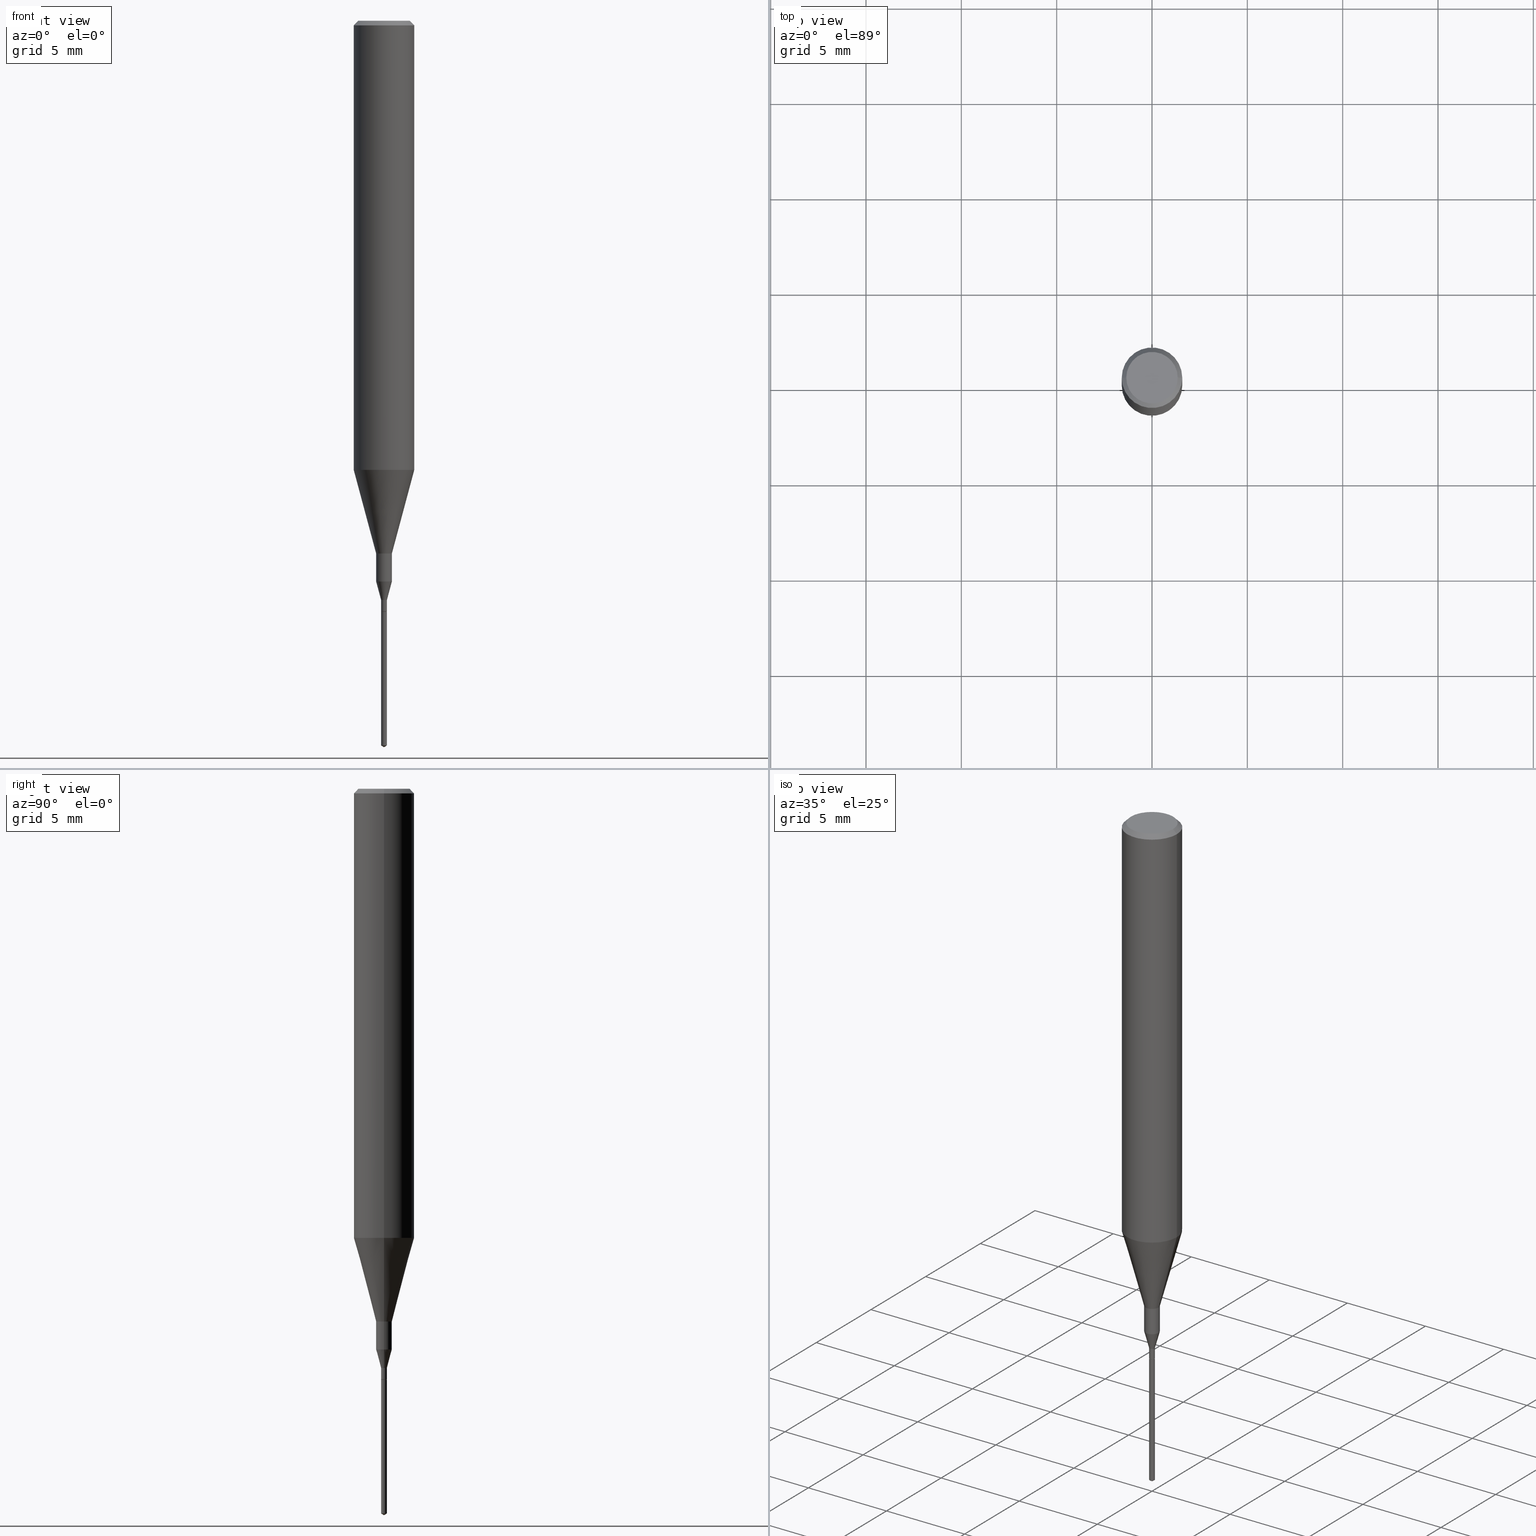
[diagram: canonical four-view strip — front | top / right | iso, engineering-drawing reading convention]
A machine part, canonical four-view strip (front | top / right | iso — engineering-drawing reading convention). The complete STEP part file that produces these views, byte-faithful:
ISO-10303-21;
HEADER;
FILE_DESCRIPTION (( 'STEP AP203' ),
    '1' );
FILE_NAME ('07101.STEP',
    '2024-04-19T13:29:59',
    ( '' ),
    ( '' ),
    'SwSTEP 2.0',
    'SolidWorks 2023',
    '' );
FILE_SCHEMA (( 'CONFIG_CONTROL_DESIGN' ));
ENDSEC;

DATA;
#1 = EDGE_LOOP ( 'NONE', ( #432, #567 ) ) ;
#2 = APPROVAL_ROLE ( '' ) ;
#3 = EDGE_LOOP ( 'NONE', ( #159, #358, #18, #291 ) ) ;
#4 = DIRECTION ( 'NONE',  ( -6.982962677686265133E-15, -1.000000000000000000, 3.468864327941785119E-15 ) ) ;
#5 = ADVANCED_FACE ( 'NONE', ( #354 ), #546, .T. ) ;
#6 = CARTESIAN_POINT ( 'NONE',  ( 2.983471943545866670E-29, -4.259607233388637524E-15, -1.220000000000000195 ) ) ;
#7 = CARTESIAN_POINT ( 'NONE',  ( 2.831232900409094204E-29, -4.042250227316429819E-15, -1.157746479222419245 ) ) ;
#8 = CARTESIAN_POINT ( 'NONE',  ( 3.660032449137451558E-29, -5.223710174552565788E-15, -1.496394836285834584 ) ) ;
#9 = AXIS2_PLACEMENT_3D ( 'NONE', #55, #236, #367 ) ;
#10 = FACE_OUTER_BOUND ( 'NONE', #399, .T. ) ;
#11 = CARTESIAN_POINT ( 'NONE',  ( -0.005500000000000000548, -4.217878155747721172E-15, -1.220000000000000195 ) ) ;
#12 = CARTESIAN_POINT ( 'NONE',  ( -0.005999999999999988849, 4.263256414560593192E-17, -2.951361054152938246E-31 ) ) ;
#13 = APPROVAL_STATUS ( 'not_yet_approved' ) ;
#14 = LINE ( 'NONE', #12, #323 ) ;
#15 = PERSON_AND_ORGANIZATION ( #486, #386 ) ;
#16 = DIRECTION ( 'NONE',  ( -0.2588190451025219607, 5.211531920934553408E-15, 0.9659258262890678681 ) ) ;
#17 = EDGE_CURVE ( 'NONE', #538, #357, #307, .T. ) ;
#18 = ORIENTED_EDGE ( 'NONE', *, *, #361, .T. ) ;
#19 = LINE ( 'NONE', #145, #337 ) ;
#20 = CARTESIAN_POINT ( 'NONE',  ( 0.005999999999999988849, -4.189777606611752779E-17, 2.925706065477556414E-31 ) ) ;
#21 = VERTEX_POINT ( 'NONE', #412 ) ;
#22 = DIRECTION ( 'NONE',  ( -2.445468806185136877E-29, 3.491481338843145188E-15, 1.000000000000000000 ) ) ;
#23 = ADVANCED_FACE ( 'NONE', ( #369 ), #396, .T. ) ;
#24 = VECTOR ( 'NONE', #565, 39.37007874015748854 ) ;
#25 = DIRECTION ( 'NONE',  ( -6.982962677686265922E-15, -1.000000000000000000, 0.000000000000000000 ) ) ;
#26 = DIRECTION ( 'NONE',  ( 1.000000000000000000, -6.982962677686270655E-15, 0.000000000000000000 ) ) ;
#27 = CARTESIAN_POINT ( 'NONE',  ( -0.01625000000000000056, -3.926787032755413633E-15, -1.157746479222419245 ) ) ;
#28 = ORIENTED_EDGE ( 'NONE', *, *, #401, .T. ) ;
#29 = VECTOR ( 'NONE', #228, 39.37007874015748143 ) ;
#30 = APPROVAL_DATE_TIME ( #169, #190 ) ;
#31 = VERTEX_POINT ( 'NONE', #11 ) ;
#32 = ORIENTED_EDGE ( 'NONE', *, *, #149, .T. ) ;
#33 = EDGE_CURVE ( 'NONE', #262, #488, #92, .T. ) ;
#34 = AXIS2_PLACEMENT_3D ( 'NONE', #558, #203, #53 ) ;
#35 = ORIENTED_EDGE ( 'NONE', *, *, #500, .T. ) ;
#36 = SHAPE_DEFINITION_REPRESENTATION ( #475, #454 ) ;
#37 = PRODUCT_DEFINITION ( 'UNKNOWN', '', #498, #166 ) ;
#38 = VERTEX_POINT ( 'NONE', #178 ) ;
#39 = CIRCLE ( 'NONE', #418, 0.06250000000000011102 ) ;
#40 = ORIENTED_EDGE ( 'NONE', *, *, #509, .F. ) ;
#41 = EDGE_CURVE ( 'NONE', #421, #544, #238, .T. ) ;
#42 = AXIS2_PLACEMENT_3D ( 'NONE', #6, #181, #48 ) ;
#43 = DIRECTION ( 'NONE',  ( -2.445468806185136597E-29, 3.491481338843145583E-15, 1.000000000000000000 ) ) ;
#44 = AXIS2_PLACEMENT_3D ( 'NONE', #366, #453, #551 ) ;
#45 = FACE_OUTER_BOUND ( 'NONE', #176, .T. ) ;
#46 = DIRECTION ( 'NONE',  ( -2.445468806185136597E-29, 3.491481338843145583E-15, 1.000000000000000000 ) ) ;
#47 = AXIS2_PLACEMENT_3D ( 'NONE', #233, #231, #324 ) ;
#48 = DIRECTION ( 'NONE',  ( 1.000000000000000000, -6.982962677686244622E-15, 0.000000000000000000 ) ) ;
#49 = VECTOR ( 'NONE', #476, 39.37007874015748143 ) ;
#50 = DIRECTION ( 'NONE',  ( -2.445468806185136597E-29, 3.491481338843145583E-15, 1.000000000000000000 ) ) ;
#51 = CARTESIAN_POINT ( 'NONE',  ( -0.06250000000000011102, -2.793884921928740709E-15, -0.9273926501499395458 ) ) ;
#52 = CARTESIAN_POINT ( 'NONE',  ( 0.000000000000000000, 0.000000000000000000, 0.000000000000000000 ) ) ;
#53 = DIRECTION ( 'NONE',  ( 1.000000000000000000, -6.982962677686270655E-15, 0.000000000000000000 ) ) ;
#54 = DIRECTION ( 'NONE',  ( -1.000000000000000000, 6.982962677686266711E-15, 0.000000000000000000 ) ) ;
#55 = CARTESIAN_POINT ( 'NONE',  ( 2.690015686803650369E-29, -3.840629472727460101E-15, -1.100000000000000089 ) ) ;
#56 = CALENDAR_DATE ( 2024, 19, 4 ) ;
#57 = DIRECTION ( 'NONE',  ( 2.447804433263427042E-29, -3.488136587931395429E-15, -1.000000000000000000 ) ) ;
#58 = DIRECTION ( 'NONE',  ( 1.000000000000000000, -6.982962677686244622E-15, 0.000000000000000000 ) ) ;
#59 = CARTESIAN_POINT ( 'NONE',  ( 0.05312499999999999861, -4.129888592719939842E-16, -5.787680772767651417E-18 ) ) ;
#60 = ADVANCED_FACE ( 'NONE', ( #45 ), #559, .T. ) ;
#61 = CALENDAR_DATE ( 2024, 19, 4 ) ;
#62 = DIRECTION ( 'NONE',  ( -6.982962677686265922E-15, -1.000000000000000000, 0.000000000000000000 ) ) ;
#63 = DIRECTION ( 'NONE',  ( -2.438088387897960049E-29, 3.491481338843145188E-15, 1.000000000000000000 ) ) ;
#64 = CIRCLE ( 'NONE', #212, 0.005500000000000000548 ) ;
#65 = ORIENTED_EDGE ( 'NONE', *, *, #436, .T. ) ;
#66 = FACE_OUTER_BOUND ( 'NONE', #1, .T. ) ;
#67 = CARTESIAN_POINT ( 'NONE',  ( -0.005500000000000000548, -4.220527382921832374E-15, -1.220000000000000195 ) ) ;
#68 = EDGE_CURVE ( 'NONE', #589, #488, #400, .T. ) ;
#69 = DIRECTION ( 'NONE',  ( -2.445468806185136597E-29, 3.491481338843145583E-15, 1.000000000000000000 ) ) ;
#70 = CYLINDRICAL_SURFACE ( 'NONE', #115, 0.005999999999999988849 ) ;
#71 = ORIENTED_EDGE ( 'NONE', *, *, #244, .T. ) ;
#72 = DIRECTION ( 'NONE',  ( -2.447804433263427602E-29, 3.488136587931395429E-15, 1.000000000000000000 ) ) ;
#73 = EDGE_CURVE ( 'NONE', #192, #222, #304, .T. ) ;
#74 = AXIS2_PLACEMENT_3D ( 'NONE', #342, #111, #520 ) ;
#75 = ORIENTED_EDGE ( 'NONE', *, *, #214, .T. ) ;
#76 = EDGE_LOOP ( 'NONE', ( #360, #75, #439, #128 ) ) ;
#77 = AXIS2_PLACEMENT_3D ( 'NONE', #191, #43, #416 ) ;
#78 = DIRECTION ( 'NONE',  ( 1.000000000000000000, -6.982962677686258033E-15, 0.000000000000000000 ) ) ;
#79 = ORIENTED_EDGE ( 'NONE', *, *, #361, .F. ) ;
#80 = CC_DESIGN_PERSON_AND_ORGANIZATION_ASSIGNMENT ( #434, #356, ( #326 ) ) ;
#81 = LOCAL_TIME ( 9, 29, 59.00000000000000000, #146 ) ;
#82 = DATE_AND_TIME ( #482, #533 ) ;
#83 = EDGE_LOOP ( 'NONE', ( #587, #588, #127 ) ) ;
#84 = ORIENTED_EDGE ( 'NONE', *, *, #401, .F. ) ;
#85 = ORIENTED_EDGE ( 'NONE', *, *, #148, .T. ) ;
#86 = AXIS2_PLACEMENT_3D ( 'NONE', #349, #297, #576 ) ;
#87 = ADVANCED_FACE ( 'NONE', ( #404 ), #147, .T. ) ;
#88 = LINE ( 'NONE', #403, #207 ) ;
#89 = DIRECTION ( 'NONE',  ( 1.000000000000000000, -6.982962677686259611E-15, 0.000000000000000000 ) ) ;
#90 = CARTESIAN_POINT ( 'NONE',  ( 0.06250000000000011102, -3.674409299134196572E-15, -0.9273926501499395458 ) ) ;
#91 = LOCAL_TIME ( 9, 29, 59.00000000000000000, #465 ) ;
#92 = LINE ( 'NONE', #372, #162 ) ;
#93 = CYLINDRICAL_SURFACE ( 'NONE', #438, 0.01624999999999999709 ) ;
#94 = ADVANCED_FACE ( 'NONE', ( #364 ), #137, .T. ) ;
#95 = CARTESIAN_POINT ( 'NONE',  ( 0.005999999999999983645, -4.217709457322519861E-15, -1.195999999999999952 ) ) ;
#96 = AXIS2_PLACEMENT_3D ( 'NONE', #157, #581, #258 ) ;
#97 = CARTESIAN_POINT ( 'NONE',  ( 2.267909797027042920E-29, -3.237974131778804114E-15, -0.9273926501499395458 ) ) ;
#98 = MANIFOLD_SOLID_BREP ( 'Body-Move/Copy2[1]', #427 ) ;
#99 = MECHANICAL_CONTEXT ( 'NONE', #470, 'mechanical' ) ;
#100 = CARTESIAN_POINT ( 'NONE',  ( 0.000000000000000000, 0.000000000000000000, 0.000000000000000000 ) ) ;
#101 = DIRECTION ( 'NONE',  ( -1.000000000000000000, 6.982962677686266711E-15, 0.000000000000000000 ) ) ;
#102 = CONICAL_SURFACE ( 'NONE', #477, 0.06250000000000000000, 0.7853981633974453924 ) ;
#103 = APPROVAL_PERSON_ORGANIZATION ( #513, #298, #105 ) ;
#104 = FACE_OUTER_BOUND ( 'NONE', #316, .T. ) ;
#105 = APPROVAL_ROLE ( '' ) ;
#106 = ADVANCED_FACE ( 'NONE', ( #280 ), #102, .T. ) ;
#107 = DIRECTION ( 'NONE',  ( -2.445468806185136597E-29, 3.491481338843145583E-15, 1.000000000000000000 ) ) ;
#108 = FACE_OUTER_BOUND ( 'NONE', #261, .T. ) ;
#109 = CARTESIAN_POINT ( 'NONE',  ( 2.983471943545866670E-29, -4.259607233388637524E-15, -1.220000000000000195 ) ) ;
#110 = AXIS2_PLACEMENT_3D ( 'NONE', #553, #331, #101 ) ;
#111 = DIRECTION ( 'NONE',  ( -2.445468806185136597E-29, 3.491481338843145583E-15, 1.000000000000000000 ) ) ;
#112 = LINE ( 'NONE', #473, #310 ) ;
#113 = ORIENTED_EDGE ( 'NONE', *, *, #206, .T. ) ;
#114 = DIRECTION ( 'NONE',  ( 0.7071067811865454633, -7.319954787623248157E-15, -0.7071067811865495711 ) ) ;
#115 = AXIS2_PLACEMENT_3D ( 'NONE', #387, #256, #118 ) ;
#116 = DIRECTION ( 'NONE',  ( 1.000000000000000000, -6.982962677686244622E-15, 0.000000000000000000 ) ) ;
#117 = ORIENTED_EDGE ( 'NONE', *, *, #335, .T. ) ;
#118 = DIRECTION ( 'NONE',  ( 1.000000000000000000, -6.982962677686267499E-15, 4.876176775795936353E-29 ) ) ;
#119 = EDGE_CURVE ( 'NONE', #357, #538, #209, .T. ) ;
#120 = EDGE_CURVE ( 'NONE', #210, #192, #134, .T. ) ;
#121 = ORIENTED_EDGE ( 'NONE', *, *, #148, .F. ) ;
#122 = VERTEX_POINT ( 'NONE', #95 ) ;
#123 = EDGE_CURVE ( 'NONE', #222, #21, #276, .T. ) ;
#124 = APPROVAL_DATE_TIME ( #517, #298 ) ;
#125 = ORIENTED_EDGE ( 'NONE', *, *, #289, .F. ) ;
#126 = ORIENTED_EDGE ( 'NONE', *, *, #582, .F. ) ;
#127 = ORIENTED_EDGE ( 'NONE', *, *, #41, .F. ) ;
#128 = ORIENTED_EDGE ( 'NONE', *, *, #436, .F. ) ;
#129 = EDGE_LOOP ( 'NONE', ( #257, #113, #126, #440 ) ) ;
#130 = CARTESIAN_POINT ( 'NONE',  ( 2.292627005798580623E-31, -3.273263755165470801E-17, -0.009375000000000062103 ) ) ;
#131 = DATE_TIME_ROLE ( 'classification_date' ) ;
#132 = DIRECTION ( 'NONE',  ( -2.445468806185136597E-29, 3.491481338843145583E-15, 1.000000000000000000 ) ) ;
#133 = DIRECTION ( 'NONE',  ( -6.982962677686265133E-15, -1.000000000000000000, 3.468864327941785119E-15 ) ) ;
#134 = LINE ( 'NONE', #273, #411 ) ;
#135 = CARTESIAN_POINT ( 'NONE',  ( 0.01624999999999999709, -3.954102616239861778E-15, -1.100000000000000089 ) ) ;
#136 = EDGE_CURVE ( 'NONE', #210, #491, #368, .T. ) ;
#137 = CYLINDRICAL_SURFACE ( 'NONE', #284, 0.06250000000000005551 ) ;
#138 = CARTESIAN_POINT ( 'NONE',  ( -0.06250000000000000000, 4.037025298037369984E-16, -0.009375000000000062103 ) ) ;
#139 = LENGTH_MEASURE_WITH_UNIT ( LENGTH_MEASURE( 0.02539999999999999897 ), #463 );
#140 = DIRECTION ( 'NONE',  ( -2.445468806185136597E-29, 3.491481338843145583E-15, 1.000000000000000000 ) ) ;
#141 = CIRCLE ( 'NONE', #180, 0.06250000000000011102 ) ;
#142 = CARTESIAN_POINT ( 'NONE',  ( 0.005500000000000000548, -4.298013528115912180E-15, -1.220000000000000195 ) ) ;
#143 = DIRECTION ( 'NONE',  ( 1.000000000000000000, 0.000000000000000000, 0.000000000000000000 ) ) ;
#144 = CC_DESIGN_DATE_AND_TIME_ASSIGNMENT ( #151, #196, ( #37 ) ) ;
#145 = CARTESIAN_POINT ( 'NONE',  ( -0.01625000000000000056, -3.926787032755413633E-15, -1.157746479222419245 ) ) ;
#146 = COORDINATED_UNIVERSAL_TIME_OFFSET ( 5, 0, .BEHIND. ) ;
#147 = CONICAL_SURFACE ( 'NONE', #42, 0.005500000000000000548, 0.7853981633974066456 ) ;
#148 = EDGE_CURVE ( 'NONE', #222, #192, #158, .T. ) ;
#149 = EDGE_CURVE ( 'NONE', #444, #268, #507, .T. ) ;
#150 = CARTESIAN_POINT ( 'NONE',  ( -4.189777606608776678E-17, -0.006000000000004260606, -1.220000000000000195 ) ) ;
#151 = DATE_AND_TIME ( #56, #81 ) ;
#152 = CARTESIAN_POINT ( 'NONE',  ( 0.01625000000000000056, -4.155723370828831495E-15, -1.157746479222419245 ) ) ;
#153 = PERSON_AND_ORGANIZATION ( #486, #386 ) ;
#154 = VECTOR ( 'NONE', #22, 39.37007874015748143 ) ;
#155 = ORIENTED_EDGE ( 'NONE', *, *, #136, .T. ) ;
#156 = LINE ( 'NONE', #152, #24 ) ;
#157 = CARTESIAN_POINT ( 'NONE',  ( 3.660032449137451558E-29, -5.223710174552565788E-15, -1.496394836285834584 ) ) ;
#158 = CIRCLE ( 'NONE', #9, 0.01624999999999999709 ) ;
#159 = ORIENTED_EDGE ( 'NONE', *, *, #461, .F. ) ;
#160 = CARTESIAN_POINT ( 'NONE',  ( 0.000000000000000000, 0.000000000000000000, 0.000000000000000000 ) ) ;
#161 = DIMENSIONAL_EXPONENTS ( 1.000000000000000000, 0.000000000000000000, 0.000000000000000000, 0.000000000000000000, 0.000000000000000000, 0.000000000000000000, 0.000000000000000000 ) ;
#162 = VECTOR ( 'NONE', #185, 39.37007874015748143 ) ;
#163 = FACE_OUTER_BOUND ( 'NONE', #532, .T. ) ;
#164 = AXIS2_PLACEMENT_3D ( 'NONE', #247, #286, #462 ) ;
#165 = CARTESIAN_POINT ( 'NONE',  ( 0.06250000000000000000, -4.691678049070463404E-16, -0.009375000000000062103 ) ) ;
#166 = DESIGN_CONTEXT ( 'detailed design', #502, 'design' ) ;
#167 = AXIS2_PLACEMENT_3D ( 'NONE', #7, #183, #282 ) ;
#168 = ADVANCED_FACE ( 'NONE', ( #10 ), #391, .T. ) ;
#169 = DATE_AND_TIME ( #314, #245 ) ;
#170 = ORIENTED_EDGE ( 'NONE', *, *, #496, .F. ) ;
#171 = ORIENTED_EDGE ( 'NONE', *, *, #225, .F. ) ;
#172 = ORIENTED_EDGE ( 'NONE', *, *, #392, .T. ) ;
#173 = EDGE_LOOP ( 'NONE', ( #483, #309, #265, #264 ) ) ;
#174 = AXIS2_PLACEMENT_3D ( 'NONE', #202, #381, #116 ) ;
#175 = ORIENTED_EDGE ( 'NONE', *, *, #33, .T. ) ;
#176 = EDGE_LOOP ( 'NONE', ( #312, #577, #490, #121 ) ) ;
#177 = APPROVAL_PERSON_ORGANIZATION ( #389, #190, #2 ) ;
#178 = CARTESIAN_POINT ( 'NONE',  ( -0.005999999999999983645, -4.174204022842203454E-15, -1.195999999999999952 ) ) ;
#179 = FACE_OUTER_BOUND ( 'NONE', #586, .T. ) ;
#180 = AXIS2_PLACEMENT_3D ( 'NONE', #97, #46, #405 ) ;
#181 = DIRECTION ( 'NONE',  ( -2.445468806185136597E-29, 3.491481338843145583E-15, 1.000000000000000000 ) ) ;
#182 = ADVANCED_FACE ( 'NONE', ( #269 ), #93, .T. ) ;
#183 = DIRECTION ( 'NONE',  ( -2.445468806185136597E-29, 3.491481338843145583E-15, 1.000000000000000000 ) ) ;
#184 = CONICAL_SURFACE ( 'NONE', #552, 65.52281426576482204, 1.029744258676630109 ) ;
#185 = DIRECTION ( 'NONE',  ( -2.445468806185136877E-29, 3.491481338843145188E-15, 1.000000000000000000 ) ) ;
#186 = ORIENTED_EDGE ( 'NONE', *, *, #271, .T. ) ;
#187 = DIRECTION ( 'NONE',  ( -2.445468806185136877E-29, 3.491481338843145188E-15, 1.000000000000000000 ) ) ;
#188 = CC_DESIGN_APPROVAL ( #190, ( #326 ) ) ;
#189 = DIRECTION ( 'NONE',  ( -2.445468806185136597E-29, 3.491481338843145583E-15, 1.000000000000000000 ) ) ;
#190 = APPROVAL ( #541, 'UNSPECIFIED' ) ;
#191 = CARTESIAN_POINT ( 'NONE',  ( 2.831232900409094204E-29, -4.042250227316429819E-15, -1.157746479222419245 ) ) ;
#192 = VERTEX_POINT ( 'NONE', #135 ) ;
#193 = AXIS2_PLACEMENT_3D ( 'NONE', #8, #497, #547 ) ;
#194 = VECTOR ( 'NONE', #378, 39.37007874015748143 ) ;
#195 = CARTESIAN_POINT ( 'NONE',  ( 0.005999999999999994053, -4.299759268785333684E-15, -1.219500000000000028 ) ) ;
#196 = DATE_TIME_ROLE ( 'creation_date' ) ;
#197 = ORIENTED_EDGE ( 'NONE', *, *, #554, .T. ) ;
#198 = CARTESIAN_POINT ( 'NONE',  ( 2.983471943545866670E-29, -4.259607233388637524E-15, -1.220000000000000195 ) ) ;
#199 = APPLICATION_PROTOCOL_DEFINITION ( 'international standard', 'config_control_design', 1994, #502 ) ;
#200 = AXIS2_PLACEMENT_3D ( 'NONE', #407, #140, #330 ) ;
#201 = ORIENTED_EDGE ( 'NONE', *, *, #302, .T. ) ;
#202 = CARTESIAN_POINT ( 'NONE',  ( 2.983471943545866670E-29, -4.259607233388637524E-15, -1.220000000000000195 ) ) ;
#203 = DIRECTION ( 'NONE',  ( -2.445468806185136597E-29, 3.491481338843145583E-15, 1.000000000000000000 ) ) ;
#204 = CARTESIAN_POINT ( 'NONE',  ( -4.189777606608776678E-17, -0.006000000000004260606, -1.220000000000000195 ) ) ;
#205 = CARTESIAN_POINT ( 'NONE',  ( -0.06250000000000000000, -1.191264174815165938E-15, -0.009375000000000062103 ) ) ;
#206 = EDGE_CURVE ( 'NONE', #295, #38, #14, .T. ) ;
#207 = VECTOR ( 'NONE', #187, 39.37007874015748143 ) ;
#208 = LINE ( 'NONE', #528, #49 ) ;
#209 = CIRCLE ( 'NONE', #44, 0.006000000000000000992 ) ;
#210 = VERTEX_POINT ( 'NONE', #277 ) ;
#211 = DIRECTION ( 'NONE',  ( 1.000000000000000000, -6.982962677686258033E-15, 0.000000000000000000 ) ) ;
#212 = AXIS2_PLACEMENT_3D ( 'NONE', #241, #456, #58 ) ;
#213 = CYLINDRICAL_SURFACE ( 'NONE', #573, 0.006000000000000000992 ) ;
#214 = EDGE_CURVE ( 'NONE', #295, #268, #518, .T. ) ;
#215 = ADVANCED_FACE ( 'NONE', ( #274 ), #340, .T. ) ;
#216 = ORIENTED_EDGE ( 'NONE', *, *, #335, .F. ) ;
#217 = EDGE_LOOP ( 'NONE', ( #574, #523 ) ) ;
#218 = CC_DESIGN_SECURITY_CLASSIFICATION ( #326, ( #498 ) ) ;
#219 = ORIENTED_EDGE ( 'NONE', *, *, #225, .T. ) ;
#220 = EDGE_LOOP ( 'NONE', ( #522, #65, #28, #318 ) ) ;
#221 = VECTOR ( 'NONE', #72, 39.37007874015748143 ) ;
#222 = VERTEX_POINT ( 'NONE', #557 ) ;
#223 = ORIENTED_EDGE ( 'NONE', *, *, #336, .T. ) ;
#224 = CARTESIAN_POINT ( 'NONE',  ( 0.06250000000000011102, -3.674409299134196572E-15, -0.9273926501499395458 ) ) ;
#225 = EDGE_CURVE ( 'NONE', #488, #589, #466, .T. ) ;
#226 = DIRECTION ( 'NONE',  ( -2.445468806185136597E-29, 3.491481338843145583E-15, 1.000000000000000000 ) ) ;
#227 = ADVANCED_FACE ( 'NONE', ( #179 ), #184, .T. ) ;
#228 = DIRECTION ( 'NONE',  ( -0.2588190451025214611, 5.211531920934550253E-15, 0.9659258262890679791 ) ) ;
#229 = ADVANCED_FACE ( 'NONE', ( #365 ), #406, .T. ) ;
#230 = AXIS2_PLACEMENT_3D ( 'NONE', #287, #376, #424 ) ;
#231 = DIRECTION ( 'NONE',  ( -2.447804433263427602E-29, 3.488136587931395429E-15, 1.000000000000000000 ) ) ;
#232 = DIRECTION ( 'NONE',  ( -2.447804433263427602E-29, 3.488136587931395429E-15, 1.000000000000000000 ) ) ;
#233 = CARTESIAN_POINT ( 'NONE',  ( 2.983471943545866670E-29, -4.259607233388637524E-15, -1.220000000000000195 ) ) ;
#234 = CARTESIAN_POINT ( 'NONE',  ( -9.270139609322808128E-28, 1.320919266452738465E-13, 37.87007874015748143 ) ) ;
#235 = CC_DESIGN_APPROVAL ( #526, ( #37 ) ) ;
#236 = DIRECTION ( 'NONE',  ( -2.445468806185136597E-29, 3.491481338843145583E-15, 1.000000000000000000 ) ) ;
#237 = APPROVAL_STATUS ( 'not_yet_approved' ) ;
#238 = CIRCLE ( 'NONE', #193, 0.006000000000000000125 ) ;
#239 = VECTOR ( 'NONE', #328, 39.37007874015748143 ) ;
#240 = LINE ( 'NONE', #464, #154 ) ;
#241 = CARTESIAN_POINT ( 'NONE',  ( 2.983471943545866670E-29, -4.259607233388637524E-15, -1.220000000000000195 ) ) ;
#242 = DIRECTION ( 'NONE',  ( -2.445468806185136597E-29, 3.491481338843145583E-15, 1.000000000000000000 ) ) ;
#243 =( NAMED_UNIT ( * ) PLANE_ANGLE_UNIT ( ) SI_UNIT ( $, .RADIAN. ) );
#244 = EDGE_CURVE ( 'NONE', #491, #222, #88, .T. ) ;
#245 = LOCAL_TIME ( 9, 29, 59.00000000000000000, #585 ) ;
#246 = VERTEX_POINT ( 'NONE', #445 ) ;
#247 = CARTESIAN_POINT ( 'NONE',  ( 7.076796394983739835E-47, -1.010378970665454992E-32, -2.893840386385196200E-18 ) ) ;
#248 = EDGE_LOOP ( 'NONE', ( #351, #353, #484, #125 ) ) ;
#249 = DIRECTION ( 'NONE',  ( 1.000000000000000000, -6.982962677686265922E-15, 4.876176775795935793E-29 ) ) ;
#250 = DIRECTION ( 'NONE',  ( 6.982962677686265922E-15, 1.000000000000000000, -3.488136587931395429E-15 ) ) ;
#251 = FACE_OUTER_BOUND ( 'NONE', #543, .T. ) ;
#252 = VECTOR ( 'NONE', #288, 39.37007874015748143 ) ;
#253 = CC_DESIGN_PERSON_AND_ORGANIZATION_ASSIGNMENT ( #393, #260, ( #498 ) ) ;
#254 = DIRECTION ( 'NONE',  ( 1.000000000000000000, -6.982962677686266711E-15, 4.876176775795935232E-29 ) ) ;
#255 = CC_DESIGN_PERSON_AND_ORGANIZATION_ASSIGNMENT ( #278, #334, ( #347 ) ) ;
#256 = DIRECTION ( 'NONE',  ( -2.445468806185136597E-29, 3.491481338843145583E-15, 1.000000000000000000 ) ) ;
#257 = ORIENTED_EDGE ( 'NONE', *, *, #409, .T. ) ;
#258 = DIRECTION ( 'NONE',  ( -6.982962677686265922E-15, -1.000000000000000000, 0.000000000000000000 ) ) ;
#259 = CONICAL_SURFACE ( 'NONE', #230, 0.06250000000000011102, 0.2617993877991501850 ) ;
#260 = PERSON_AND_ORGANIZATION_ROLE ( 'creator' ) ;
#261 = EDGE_LOOP ( 'NONE', ( #308, #85, #435, #305 ) ) ;
#262 = VERTEX_POINT ( 'NONE', #224 ) ;
#263 = AXIS2_PLACEMENT_3D ( 'NONE', #499, #410, #455 ) ;
#264 = ORIENTED_EDGE ( 'NONE', *, *, #149, .F. ) ;
#265 = ORIENTED_EDGE ( 'NONE', *, *, #409, .F. ) ;
#266 = ORIENTED_EDGE ( 'NONE', *, *, #214, .F. ) ;
#267 = ORIENTED_EDGE ( 'NONE', *, *, #68, .F. ) ;
#268 = VERTEX_POINT ( 'NONE', #195 ) ;
#269 = FACE_OUTER_BOUND ( 'NONE', #348, .T. ) ;
#270 = DIRECTION ( 'NONE',  ( 1.000000000000000000, -6.982962677686266711E-15, 4.876176775795935232E-29 ) ) ;
#271 = EDGE_CURVE ( 'NONE', #246, #589, #370, .T. ) ;
#272 = DIRECTION ( 'NONE',  ( 0.2588190451025214611, 1.565188264969620982E-15, 0.9659258262890679791 ) ) ;
#273 = CARTESIAN_POINT ( 'NONE',  ( 0.01624999999999999709, -1.134731435124018242E-16, 7.923787260668394963E-31 ) ) ;
#274 = FACE_OUTER_BOUND ( 'NONE', #535, .T. ) ;
#275 = CIRCLE ( 'NONE', #375, 0.005999999999999983645 ) ;
#276 = LINE ( 'NONE', #51, #29 ) ;
#277 = CARTESIAN_POINT ( 'NONE',  ( 0.01625000000000000056, -4.155723370828831495E-15, -1.157746479222419245 ) ) ;
#278 = PERSON_AND_ORGANIZATION ( #486, #386 ) ;
#279 = CLOSED_SHELL ( 'NONE', ( #168, #548, #23, #182, #215, #433, #87, #572, #311, #281, #5, #60, #339, #94, #106, #380 ) ) ;
#280 = FACE_OUTER_BOUND ( 'NONE', #390, .T. ) ;
#281 = ADVANCED_FACE ( 'NONE', ( #549 ), #373, .T. ) ;
#282 = DIRECTION ( 'NONE',  ( 1.000000000000000000, -6.982962677686258033E-15, 0.000000000000000000 ) ) ;
#283 = DATE_AND_TIME ( #508, #556 ) ;
#284 = AXIS2_PLACEMENT_3D ( 'NONE', #100, #132, #270 ) ;
#285 = APPROVAL_PERSON_ORGANIZATION ( #15, #526, #460 ) ;
#286 = DIRECTION ( 'NONE',  ( 2.438088387897960049E-29, -3.491481338843145188E-15, -1.000000000000000000 ) ) ;
#287 = CARTESIAN_POINT ( 'NONE',  ( 2.267909797027042920E-29, -3.237974131778804114E-15, -0.9273926501499395458 ) ) ;
#288 = DIRECTION ( 'NONE',  ( -2.445468806185136877E-29, 3.491481338843145188E-15, 1.000000000000000000 ) ) ;
#289 = EDGE_CURVE ( 'NONE', #192, #262, #503, .T. ) ;
#290 = AXIS2_PLACEMENT_3D ( 'NONE', #160, #524, #254 ) ;
#291 = ORIENTED_EDGE ( 'NONE', *, *, #17, .F. ) ;
#292 = CYLINDRICAL_SURFACE ( 'NONE', #355, 0.006000000000000000992 ) ;
#293 =( CONVERSION_BASED_UNIT ( 'INCH', #139 ) LENGTH_UNIT ( ) NAMED_UNIT ( #161 ) );
#294 = MANIFOLD_SOLID_BREP ( 'Body-Move/Copy2[2]', #279 ) ;
#295 = VERTEX_POINT ( 'NONE', #447 ) ;
#296 = CARTESIAN_POINT ( 'NONE',  ( 2.267909797027042920E-29, -3.237974131778804114E-15, -0.9273926501499395458 ) ) ;
#297 = DIRECTION ( 'NONE',  ( -2.445468806185136597E-29, 3.491481338843145583E-15, 1.000000000000000000 ) ) ;
#298 = APPROVAL ( #237, 'UNSPECIFIED' ) ;
#299 = AXIS2_PLACEMENT_3D ( 'NONE', #446, #189, #506 ) ;
#300 = LINE ( 'NONE', #67, #505 ) ;
#301 = CIRCLE ( 'NONE', #96, 0.006000000000000000125 ) ;
#302 = EDGE_CURVE ( 'NONE', #21, #262, #141, .T. ) ;
#303 = LINE ( 'NONE', #384, #221 ) ;
#304 = CIRCLE ( 'NONE', #377, 0.01624999999999999709 ) ;
#305 = ORIENTED_EDGE ( 'NONE', *, *, #302, .F. ) ;
#306 = CARTESIAN_POINT ( 'NONE',  ( 2.831232900409094204E-29, -4.042250227316429819E-15, -1.157746479222419245 ) ) ;
#307 = CIRCLE ( 'NONE', #47, 0.006000000000000000992 ) ;
#308 = ORIENTED_EDGE ( 'NONE', *, *, #123, .F. ) ;
#309 = ORIENTED_EDGE ( 'NONE', *, *, #509, .T. ) ;
#310 = VECTOR ( 'NONE', #531, 39.37007874015748854 ) ;
#311 = ADVANCED_FACE ( 'NONE', ( #516 ), #514, .T. ) ;
#312 = ORIENTED_EDGE ( 'NONE', *, *, #244, .F. ) ;
#313 = DIRECTION ( 'NONE',  ( -2.445468806185136597E-29, 3.491481338843145583E-15, 1.000000000000000000 ) ) ;
#314 = CALENDAR_DATE ( 2024, 19, 4 ) ;
#315 = ORIENTED_EDGE ( 'NONE', *, *, #479, .T. ) ;
#316 = EDGE_LOOP ( 'NONE', ( #350, #117 ) ) ;
#317 = PERSON_AND_ORGANIZATION ( #486, #386 ) ;
#318 = ORIENTED_EDGE ( 'NONE', *, *, #448, .F. ) ;
#319 = CARTESIAN_POINT ( 'NONE',  ( -9.270139609322808128E-28, 1.320919266452738465E-13, 37.87007874015748143 ) ) ;
#320 = ADVANCED_FACE ( 'NONE', ( #66 ), #338, .F. ) ;
#321 = DIRECTION ( 'NONE',  ( 1.000000000000000000, -6.982962677686267499E-15, 4.876176775795936353E-29 ) ) ;
#322 = DIRECTION ( 'NONE',  ( -2.445468806185136597E-29, 3.491481338843145583E-15, 1.000000000000000000 ) ) ;
#323 = VECTOR ( 'NONE', #325, 39.37007874015748143 ) ;
#324 = DIRECTION ( 'NONE',  ( -6.982962677686265922E-15, -1.000000000000000000, 0.000000000000000000 ) ) ;
#325 = DIRECTION ( 'NONE',  ( -2.445468806185136877E-29, 3.491481338843145188E-15, 1.000000000000000000 ) ) ;
#326 = SECURITY_CLASSIFICATION ( '', '', #362 ) ;
#327 = DIRECTION ( 'NONE',  ( 2.445468806185136597E-29, -3.491481338843145583E-15, -1.000000000000000000 ) ) ;
#328 = DIRECTION ( 'NONE',  ( -0.7071067811865454633, 2.468850131082235367E-15, -0.7071067811865495711 ) ) ;
#329 = CIRCLE ( 'NONE', #540, 0.05312499999999999861 ) ;
#330 = DIRECTION ( 'NONE',  ( 1.000000000000000000, -6.982962677686266711E-15, 0.000000000000000000 ) ) ;
#331 = DIRECTION ( 'NONE',  ( 2.445468806185136597E-29, -3.491481338843145583E-15, -1.000000000000000000 ) ) ;
#332 = DIRECTION ( 'NONE',  ( 1.000000000000000000, -6.982962677686266711E-15, 4.875930095424100059E-29 ) ) ;
#333 = CARTESIAN_POINT ( 'NONE',  ( 2.983471943545866670E-29, -4.259607233388637524E-15, -1.220000000000000195 ) ) ;
#334 = PERSON_AND_ORGANIZATION_ROLE ( 'design_owner' ) ;
#335 = EDGE_CURVE ( 'NONE', #394, #246, #329, .T. ) ;
#336 = EDGE_CURVE ( 'NONE', #262, #21, #39, .T. ) ;
#337 = VECTOR ( 'NONE', #16, 39.37007874015748854 ) ;
#338 = PLANE ( 'NONE',  #590 ) ;
#339 = ADVANCED_FACE ( 'NONE', ( #108 ), #259, .T. ) ;
#340 = CONICAL_SURFACE ( 'NONE', #77, 0.01625000000000000056, 0.2617993877991507401 ) ;
#341 = VERTEX_POINT ( 'NONE', #472 ) ;
#342 = CARTESIAN_POINT ( 'NONE',  ( 2.982249209142773869E-29, -4.257861492719216809E-15, -1.219500000000000028 ) ) ;
#343 = CARTESIAN_POINT ( 'NONE',  ( 0.06250000000000000000, -4.615137624123753937E-16, -0.009375000000000062103 ) ) ;
#344 = DIRECTION ( 'NONE',  ( -2.447804433263427602E-29, 3.488136587931395429E-15, 1.000000000000000000 ) ) ;
#345 = CARTESIAN_POINT ( 'NONE',  ( 0.005500000000000000548, -4.298013528115912180E-15, -1.220000000000000195 ) ) ;
#346 = CIRCLE ( 'NONE', #74, 0.005999999999999994053 ) ;
#347 = PRODUCT ( '07101', '07101', '', ( #99 ) ) ;
#348 = EDGE_LOOP ( 'NONE', ( #155, #71, #450, #437 ) ) ;
#349 = CARTESIAN_POINT ( 'NONE',  ( 1.415359278996747967E-46, -2.020757941330909984E-32, -5.787680772770392401E-18 ) ) ;
#350 = ORIENTED_EDGE ( 'NONE', *, *, #431, .T. ) ;
#351 = ORIENTED_EDGE ( 'NONE', *, *, #73, .T. ) ;
#352 = ADVANCED_FACE ( 'NONE', ( #562 ), #292, .T. ) ;
#353 = ORIENTED_EDGE ( 'NONE', *, *, #123, .T. ) ;
#354 = FACE_OUTER_BOUND ( 'NONE', #220, .T. ) ;
#355 = AXIS2_PLACEMENT_3D ( 'NONE', #467, #512, #62 ) ;
#356 = PERSON_AND_ORGANIZATION_ROLE ( 'classification_officer' ) ;
#357 = VERTEX_POINT ( 'NONE', #204 ) ;
#358 = ORIENTED_EDGE ( 'NONE', *, *, #496, .T. ) ;
#359 = PRODUCT_RELATED_PRODUCT_CATEGORY ( 'detail', '', ( #347 ) ) ;
#360 = ORIENTED_EDGE ( 'NONE', *, *, #206, .F. ) ;
#361 = EDGE_CURVE ( 'NONE', #421, #357, #510, .T. ) ;
#362 = SECURITY_CLASSIFICATION_LEVEL ( 'unclassified' ) ;
#363 = EDGE_CURVE ( 'NONE', #38, #491, #19, .T. ) ;
#364 = FACE_OUTER_BOUND ( 'NONE', #568, .T. ) ;
#365 = FACE_OUTER_BOUND ( 'NONE', #83, .T. ) ;
#366 = CARTESIAN_POINT ( 'NONE',  ( 2.983471943545866670E-29, -4.259607233388637524E-15, -1.220000000000000195 ) ) ;
#367 = DIRECTION ( 'NONE',  ( 1.000000000000000000, -6.982962677686259611E-15, 0.000000000000000000 ) ) ;
#368 = CIRCLE ( 'NONE', #167, 0.01625000000000000056 ) ;
#369 = FACE_OUTER_BOUND ( 'NONE', #248, .T. ) ;
#370 = LINE ( 'NONE', #138, #239 ) ;
#371 = AXIS2_PLACEMENT_3D ( 'NONE', #571, #374, #143 ) ;
#372 = CARTESIAN_POINT ( 'NONE',  ( 0.06250000000000005551, -4.364351673553920638E-16, 3.047610484872462323E-30 ) ) ;
#373 = CYLINDRICAL_SURFACE ( 'NONE', #425, 0.005999999999999988849 ) ;
#374 = DIRECTION ( 'NONE',  ( 0.000000000000000000, 0.000000000000000000, 1.000000000000000000 ) ) ;
#375 = AXIS2_PLACEMENT_3D ( 'NONE', #430, #521, #26 ) ;
#376 = DIRECTION ( 'NONE',  ( -2.445468806185136597E-29, 3.491481338843145583E-15, 1.000000000000000000 ) ) ;
#377 = AXIS2_PLACEMENT_3D ( 'NONE', #555, #226, #89 ) ;
#378 = DIRECTION ( 'NONE',  ( -2.447804433263427602E-29, 3.488136587931395429E-15, 1.000000000000000000 ) ) ;
#379 = COORDINATED_UNIVERSAL_TIME_OFFSET ( 5, 0, .BEHIND. ) ;
#380 = ADVANCED_FACE ( 'NONE', ( #104 ), #419, .F. ) ;
#381 = DIRECTION ( 'NONE',  ( -2.445468806185136597E-29, 3.491481338843145583E-15, 1.000000000000000000 ) ) ;
#382 = CIRCLE ( 'NONE', #174, 0.005500000000000000548 ) ;
#383 = CARTESIAN_POINT ( 'NONE',  ( 1.415359278996747967E-46, -2.020757941330909984E-32, -5.787680772770392401E-18 ) ) ;
#384 = CARTESIAN_POINT ( 'NONE',  ( 4.263256414563584701E-17, 0.005999999999995740511, -1.220000000000000195 ) ) ;
#385 = CARTESIAN_POINT ( 'NONE',  ( 4.263256414564259546E-17, 0.005999999999994775138, -1.496394836285834584 ) ) ;
#386 = ORGANIZATION ( 'UNSPECIFIED', 'UNSPECIFIED', '' ) ;
#387 = CARTESIAN_POINT ( 'NONE',  ( 0.000000000000000000, 0.000000000000000000, 0.000000000000000000 ) ) ;
#388 = CARTESIAN_POINT ( 'NONE',  ( 4.263256414564265709E-17, 0.005999999999995740511, -1.220000000000000195 ) ) ;
#389 = PERSON_AND_ORGANIZATION ( #486, #386 ) ;
#390 = EDGE_LOOP ( 'NONE', ( #480, #471, #186, #395 ) ) ;
#391 = CONICAL_SURFACE ( 'NONE', #110, 0.06250000000000000000, 0.7853981633974453924 ) ;
#392 = EDGE_CURVE ( 'NONE', #21, #589, #240, .T. ) ;
#393 = PERSON_AND_ORGANIZATION ( #486, #386 ) ;
#394 = VERTEX_POINT ( 'NONE', #59 ) ;
#395 = ORIENTED_EDGE ( 'NONE', *, *, #68, .T. ) ;
#396 = CONICAL_SURFACE ( 'NONE', #299, 0.06250000000000011102, 0.2617993877991501850 ) ;
#397 = ORIENTED_EDGE ( 'NONE', *, *, #529, .F. ) ;
#398 = ORIENTED_EDGE ( 'NONE', *, *, #392, .F. ) ;
#399 = EDGE_LOOP ( 'NONE', ( #216, #315, #219, #442 ) ) ;
#400 = CIRCLE ( 'NONE', #200, 0.06250000000000000000 ) ;
#401 = EDGE_CURVE ( 'NONE', #122, #210, #156, .T. ) ;
#402 = ORIENTED_EDGE ( 'NONE', *, *, #33, .F. ) ;
#403 = CARTESIAN_POINT ( 'NONE',  ( -0.01624999999999999709, 1.154631945610162595E-16, -7.993269521664220284E-31 ) ) ;
#404 = FACE_OUTER_BOUND ( 'NONE', #173, .T. ) ;
#405 = DIRECTION ( 'NONE',  ( 1.000000000000000000, -6.982962677686265922E-15, 0.000000000000000000 ) ) ;
#406 = CONICAL_SURFACE ( 'NONE', #443, 65.52281426576482204, 1.029744258676630109 ) ;
#407 = CARTESIAN_POINT ( 'NONE',  ( 2.292627005798580623E-31, -3.273263755165470801E-17, -0.009375000000000062103 ) ) ;
#408 = ORIENTED_EDGE ( 'NONE', *, *, #363, .T. ) ;
#409 = EDGE_CURVE ( 'NONE', #268, #295, #346, .T. ) ;
#410 = DIRECTION ( 'NONE',  ( -2.445468806185136597E-29, 3.491481338843145583E-15, 1.000000000000000000 ) ) ;
#411 = VECTOR ( 'NONE', #449, 39.37007874015748143 ) ;
#412 = CARTESIAN_POINT ( 'NONE',  ( -0.06250000000000011102, -2.793884921928740709E-15, -0.9273926501499395458 ) ) ;
#413 = DIRECTION ( 'NONE',  ( -2.445468806185136597E-29, 3.491481338843145583E-15, 1.000000000000000000 ) ) ;
#414 = CIRCLE ( 'NONE', #34, 0.005999999999999983645 ) ;
#415 = CC_DESIGN_PERSON_AND_ORGANIZATION_ASSIGNMENT ( #153, #469, ( #37 ) ) ;
#416 = DIRECTION ( 'NONE',  ( 1.000000000000000000, -6.982962677686258033E-15, 0.000000000000000000 ) ) ;
#417 =( NAMED_UNIT ( * ) SI_UNIT ( $, .STERADIAN. ) SOLID_ANGLE_UNIT ( ) );
#418 = AXIS2_PLACEMENT_3D ( 'NONE', #296, #107, #575 ) ;
#419 = PLANE ( 'NONE',  #164 ) ;
#420 = EDGE_CURVE ( 'NONE', #444, #31, #382, .T. ) ;
#421 = VERTEX_POINT ( 'NONE', #584 ) ;
#422 = DIRECTION ( 'NONE',  ( 1.000000000000000000, -6.982962677686244622E-15, 0.000000000000000000 ) ) ;
#423 = LINE ( 'NONE', #20, #252 ) ;
#424 = DIRECTION ( 'NONE',  ( 1.000000000000000000, -6.982962677686265922E-15, 0.000000000000000000 ) ) ;
#425 = AXIS2_PLACEMENT_3D ( 'NONE', #459, #322, #495 ) ;
#426 = CARTESIAN_POINT ( 'NONE',  ( 2.983471943545866670E-29, -4.259607233388637524E-15, -1.220000000000000195 ) ) ;
#427 = CLOSED_SHELL ( 'NONE', ( #519, #229, #227, #352, #320 ) ) ;
#428 = FACE_OUTER_BOUND ( 'NONE', #129, .T. ) ;
#429 =( GEOMETRIC_REPRESENTATION_CONTEXT ( 3 ) GLOBAL_UNCERTAINTY_ASSIGNED_CONTEXT ( ( #525 ) ) GLOBAL_UNIT_ASSIGNED_CONTEXT ( ( #293, #243, #417 ) ) REPRESENTATION_CONTEXT ( 'NONE', 'WORKASPACE' ) );
#430 = CARTESIAN_POINT ( 'NONE',  ( 2.924780692197423410E-29, -4.175811681256402197E-15, -1.195999999999999952 ) ) ;
#431 = EDGE_CURVE ( 'NONE', #246, #394, #583, .T. ) ;
#432 = ORIENTED_EDGE ( 'NONE', *, *, #119, .T. ) ;
#433 = ADVANCED_FACE ( 'NONE', ( #428 ), #70, .T. ) ;
#434 = PERSON_AND_ORGANIZATION ( #486, #386 ) ;
#435 = ORIENTED_EDGE ( 'NONE', *, *, #289, .T. ) ;
#436 = EDGE_CURVE ( 'NONE', #38, #122, #275, .T. ) ;
#437 = ORIENTED_EDGE ( 'NONE', *, *, #120, .F. ) ;
#438 = AXIS2_PLACEMENT_3D ( 'NONE', #52, #413, #492 ) ;
#439 = ORIENTED_EDGE ( 'NONE', *, *, #550, .T. ) ;
#440 = ORIENTED_EDGE ( 'NONE', *, *, #550, .F. ) ;
#441 = CC_DESIGN_APPROVAL ( #298, ( #498 ) ) ;
#442 = ORIENTED_EDGE ( 'NONE', *, *, #271, .F. ) ;
#443 = AXIS2_PLACEMENT_3D ( 'NONE', #319, #232, #133 ) ;
#444 = VERTEX_POINT ( 'NONE', #345 ) ;
#445 = CARTESIAN_POINT ( 'NONE',  ( -0.05312499999999999861, 3.873362110279099094E-16, -5.787680772773044021E-18 ) ) ;
#446 = CARTESIAN_POINT ( 'NONE',  ( 2.267909797027042920E-29, -3.237974131778804114E-15, -0.9273926501499395458 ) ) ;
#447 = CARTESIAN_POINT ( 'NONE',  ( -0.005999999999999994053, -4.215228928573609971E-15, -1.219500000000000028 ) ) ;
#448 = EDGE_CURVE ( 'NONE', #491, #210, #474, .T. ) ;
#449 = DIRECTION ( 'NONE',  ( -2.445468806185136877E-29, 3.491481338843145188E-15, 1.000000000000000000 ) ) ;
#450 = ORIENTED_EDGE ( 'NONE', *, *, #73, .F. ) ;
#451 = DIRECTION ( 'NONE',  ( 0.7071067811865180408, -2.468850131081947827E-15, 0.7071067811865769936 ) ) ;
#452 = AXIS2_PLACEMENT_3D ( 'NONE', #198, #569, #422 ) ;
#453 = DIRECTION ( 'NONE',  ( -2.447804433263427602E-29, 3.488136587931395429E-15, 1.000000000000000000 ) ) ;
#454 = ADVANCED_BREP_SHAPE_REPRESENTATION ( '07101', ( #98, #294, #371 ), #429 ) ;
#455 = DIRECTION ( 'NONE',  ( 1.000000000000000000, -6.982962677686258822E-15, 0.000000000000000000 ) ) ;
#456 = DIRECTION ( 'NONE',  ( -2.445468806185136597E-29, 3.491481338843145583E-15, 1.000000000000000000 ) ) ;
#457 = CC_DESIGN_PERSON_AND_ORGANIZATION_ASSIGNMENT ( #317, #534, ( #498 ) ) ;
#458 = CARTESIAN_POINT ( 'NONE',  ( 2.292627005798580623E-31, -3.273263755165470801E-17, -0.009375000000000062103 ) ) ;
#459 = CARTESIAN_POINT ( 'NONE',  ( 0.000000000000000000, 0.000000000000000000, 0.000000000000000000 ) ) ;
#460 = APPROVAL_ROLE ( '' ) ;
#461 = EDGE_CURVE ( 'NONE', #544, #538, #303, .T. ) ;
#462 = DIRECTION ( 'NONE',  ( -1.000000000000000000, 6.982962677686265922E-15, -4.876176775795935793E-29 ) ) ;
#463 =( LENGTH_UNIT ( ) NAMED_UNIT ( * ) SI_UNIT ( $, .METRE. ) );
#464 = CARTESIAN_POINT ( 'NONE',  ( -0.06250000000000005551, 4.440892098500630106E-16, -3.074334431409318916E-30 ) ) ;
#465 = COORDINATED_UNIVERSAL_TIME_OFFSET ( 5, 0, .BEHIND. ) ;
#466 = CIRCLE ( 'NONE', #489, 0.06250000000000000000 ) ;
#467 = CARTESIAN_POINT ( 'NONE',  ( 2.983471943545866670E-29, -4.259607233388637524E-15, -1.220000000000000195 ) ) ;
#468 = ORIENTED_EDGE ( 'NONE', *, *, #41, .T. ) ;
#469 = PERSON_AND_ORGANIZATION_ROLE ( 'creator' ) ;
#470 = APPLICATION_CONTEXT ( 'configuration controlled 3d designs of mechanical parts and assemblies' ) ;
#471 = ORIENTED_EDGE ( 'NONE', *, *, #431, .F. ) ;
#472 = CARTESIAN_POINT ( 'NONE',  ( 3.671706649895141544E-29, -5.232204881897092946E-15, -1.500000000000000222 ) ) ;
#473 = CARTESIAN_POINT ( 'NONE',  ( 3.666007719824111950E-29, -5.240366074121763826E-15, -1.500000000000000222 ) ) ;
#474 = CIRCLE ( 'NONE', #485, 0.01625000000000000056 ) ;
#475 = PRODUCT_DEFINITION_SHAPE ( 'NONE', 'NONE',  #37 ) ;
#476 = DIRECTION ( 'NONE',  ( 6.090539988449690872E-15, 0.8571673007021015644, 0.5150380749100720301 ) ) ;
#477 = AXIS2_PLACEMENT_3D ( 'NONE', #458, #327, #54 ) ;
#478 = DIRECTION ( 'NONE',  ( -0.7071067811865180408, 7.493145998870246875E-15, 0.7071067811865769936 ) ) ;
#479 = EDGE_CURVE ( 'NONE', #394, #488, #481, .T. ) ;
#480 = ORIENTED_EDGE ( 'NONE', *, *, #479, .F. ) ;
#481 = LINE ( 'NONE', #343, #527 ) ;
#482 = CALENDAR_DATE ( 2024, 19, 4 ) ;
#483 = ORIENTED_EDGE ( 'NONE', *, *, #420, .T. ) ;
#484 = ORIENTED_EDGE ( 'NONE', *, *, #336, .F. ) ;
#485 = AXIS2_PLACEMENT_3D ( 'NONE', #306, #69, #211 ) ;
#486 = PERSON ( 'UNSPECIFIED', 'UNSPECIFIED', 'UNSPECIFIED', ('UNSPECIFIED'), ('UNSPECIFIED'), ('UNSPECIFIED') ) ;
#487 = ORIENTED_EDGE ( 'NONE', *, *, #582, .T. ) ;
#488 = VERTEX_POINT ( 'NONE', #165 ) ;
#489 = AXIS2_PLACEMENT_3D ( 'NONE', #130, #50, #545 ) ;
#490 = ORIENTED_EDGE ( 'NONE', *, *, #120, .T. ) ;
#491 = VERTEX_POINT ( 'NONE', #27 ) ;
#492 = DIRECTION ( 'NONE',  ( 1.000000000000000000, -6.982962677686267499E-15, 4.876176775795936353E-29 ) ) ;
#493 = CARTESIAN_POINT ( 'NONE',  ( 0.000000000000000000, 0.000000000000000000, 0.000000000000000000 ) ) ;
#494 = VECTOR ( 'NONE', #451, 39.37007874015748143 ) ;
#495 = DIRECTION ( 'NONE',  ( 1.000000000000000000, -6.982962677686267499E-15, 4.876176775795936353E-29 ) ) ;
#496 = EDGE_CURVE ( 'NONE', #544, #421, #301, .T. ) ;
#497 = DIRECTION ( 'NONE',  ( -2.447804433263427602E-29, 3.488136587931395429E-15, 1.000000000000000000 ) ) ;
#498 = PRODUCT_DEFINITION_FORMATION_WITH_SPECIFIED_SOURCE ( 'ANY', '', #347, .NOT_KNOWN. ) ;
#499 = CARTESIAN_POINT ( 'NONE',  ( 2.982249209142773869E-29, -4.257861492719216809E-15, -1.219500000000000028 ) ) ;
#500 = EDGE_CURVE ( 'NONE', #341, #421, #112, .T. ) ;
#501 = DIRECTION ( 'NONE',  ( -2.445468806185136597E-29, 3.491481338843145583E-15, 1.000000000000000000 ) ) ;
#502 = APPLICATION_CONTEXT ( 'configuration controlled 3d designs of mechanical parts and assemblies' ) ;
#503 = LINE ( 'NONE', #90, #561 ) ;
#504 = APPLICATION_PROTOCOL_DEFINITION ( 'international standard', 'config_control_design', 1994, #470 ) ;
#505 = VECTOR ( 'NONE', #478, 39.37007874015748143 ) ;
#506 = DIRECTION ( 'NONE',  ( 1.000000000000000000, -6.982962677686265922E-15, 0.000000000000000000 ) ) ;
#507 = LINE ( 'NONE', #142, #494 ) ;
#508 = CALENDAR_DATE ( 2024, 19, 4 ) ;
#509 = EDGE_CURVE ( 'NONE', #31, #295, #300, .T. ) ;
#510 = LINE ( 'NONE', #150, #194 ) ;
#511 = FACE_OUTER_BOUND ( 'NONE', #217, .T. ) ;
#512 = DIRECTION ( 'NONE',  ( -2.447804433263427602E-29, 3.488136587931395429E-15, 1.000000000000000000 ) ) ;
#513 = PERSON_AND_ORGANIZATION ( #486, #386 ) ;
#514 = CONICAL_SURFACE ( 'NONE', #452, 0.005500000000000000548, 0.7853981633974066456 ) ;
#515 = EDGE_LOOP ( 'NONE', ( #40, #197, #32, #266 ) ) ;
#516 = FACE_OUTER_BOUND ( 'NONE', #515, .T. ) ;
#517 = DATE_AND_TIME ( #61, #91 ) ;
#518 = CIRCLE ( 'NONE', #263, 0.005999999999999994053 ) ;
#519 = ADVANCED_FACE ( 'NONE', ( #251 ), #213, .T. ) ;
#520 = DIRECTION ( 'NONE',  ( 1.000000000000000000, -6.982962677686258822E-15, 0.000000000000000000 ) ) ;
#521 = DIRECTION ( 'NONE',  ( -2.445468806185136597E-29, 3.491481338843145583E-15, 1.000000000000000000 ) ) ;
#522 = ORIENTED_EDGE ( 'NONE', *, *, #363, .F. ) ;
#523 = ORIENTED_EDGE ( 'NONE', *, *, #554, .F. ) ;
#524 = DIRECTION ( 'NONE',  ( -2.445468806185136597E-29, 3.491481338843145583E-15, 1.000000000000000000 ) ) ;
#525 = UNCERTAINTY_MEASURE_WITH_UNIT (LENGTH_MEASURE( 1.000000000000000082E-05 ), #293, 'distance_accuracy_value', 'NONE');
#526 = APPROVAL ( #13, 'UNSPECIFIED' ) ;
#527 = VECTOR ( 'NONE', #114, 39.37007874015748143 ) ;
#528 = CARTESIAN_POINT ( 'NONE',  ( 3.671756622784818160E-29, -5.232204881897092157E-15, -1.500000000000000222 ) ) ;
#529 = EDGE_CURVE ( 'NONE', #341, #544, #208, .T. ) ;
#530 = ORIENTED_EDGE ( 'NONE', *, *, #136, .F. ) ;
#531 = DIRECTION ( 'NONE',  ( -5.985567269335855294E-15, -0.8571673007020979007, 0.5150380749100779143 ) ) ;
#532 = EDGE_LOOP ( 'NONE', ( #223, #172, #171, #402 ) ) ;
#533 = LOCAL_TIME ( 9, 29, 59.00000000000000000, #537 ) ;
#534 = PERSON_AND_ORGANIZATION_ROLE ( 'design_supplier' ) ;
#535 = EDGE_LOOP ( 'NONE', ( #487, #408, #530, #84 ) ) ;
#536 = ORIENTED_EDGE ( 'NONE', *, *, #461, .T. ) ;
#537 = COORDINATED_UNIVERSAL_TIME_OFFSET ( 5, 0, .BEHIND. ) ;
#538 = VERTEX_POINT ( 'NONE', #388 ) ;
#539 = CARTESIAN_POINT ( 'NONE',  ( 2.831232900409094204E-29, -4.042250227316429819E-15, -1.157746479222419245 ) ) ;
#540 = AXIS2_PLACEMENT_3D ( 'NONE', #383, #242, #332 ) ;
#541 = APPROVAL_STATUS ( 'not_yet_approved' ) ;
#542 = ORIENTED_EDGE ( 'NONE', *, *, #119, .F. ) ;
#543 = EDGE_LOOP ( 'NONE', ( #468, #536, #542, #79 ) ) ;
#544 = VERTEX_POINT ( 'NONE', #385 ) ;
#545 = DIRECTION ( 'NONE',  ( 1.000000000000000000, -6.982962677686266711E-15, 0.000000000000000000 ) ) ;
#546 = CONICAL_SURFACE ( 'NONE', #570, 0.01625000000000000056, 0.2617993877991507401 ) ;
#547 = DIRECTION ( 'NONE',  ( -6.982962677686265922E-15, -1.000000000000000000, 0.000000000000000000 ) ) ;
#548 = ADVANCED_FACE ( 'NONE', ( #163 ), #579, .T. ) ;
#549 = FACE_OUTER_BOUND ( 'NONE', #76, .T. ) ;
#550 = EDGE_CURVE ( 'NONE', #268, #122, #423, .T. ) ;
#551 = DIRECTION ( 'NONE',  ( -6.982962677686265922E-15, -1.000000000000000000, 0.000000000000000000 ) ) ;
#552 = AXIS2_PLACEMENT_3D ( 'NONE', #234, #560, #4 ) ;
#553 = CARTESIAN_POINT ( 'NONE',  ( 2.292627005798580623E-31, -3.273263755165470801E-17, -0.009375000000000062103 ) ) ;
#554 = EDGE_CURVE ( 'NONE', #31, #444, #64, .T. ) ;
#555 = CARTESIAN_POINT ( 'NONE',  ( 2.690015686803650369E-29, -3.840629472727460101E-15, -1.100000000000000089 ) ) ;
#556 = LOCAL_TIME ( 9, 29, 59.00000000000000000, #379 ) ;
#557 = CARTESIAN_POINT ( 'NONE',  ( -0.01624999999999999709, -3.825976655460928775E-15, -1.100000000000000089 ) ) ;
#558 = CARTESIAN_POINT ( 'NONE',  ( 2.924780692197423410E-29, -4.175811681256402197E-15, -1.195999999999999952 ) ) ;
#559 = CYLINDRICAL_SURFACE ( 'NONE', #564, 0.01624999999999999709 ) ;
#560 = DIRECTION ( 'NONE',  ( -2.447804433263427602E-29, 3.488136587931395429E-15, 1.000000000000000000 ) ) ;
#561 = VECTOR ( 'NONE', #272, 39.37007874015748143 ) ;
#562 = FACE_OUTER_BOUND ( 'NONE', #3, .T. ) ;
#563 = PLANE ( 'NONE',  #580 ) ;
#564 = AXIS2_PLACEMENT_3D ( 'NONE', #493, #501, #321 ) ;
#565 = DIRECTION ( 'NONE',  ( 0.2588190451025219607, 1.565188264969616840E-15, 0.9659258262890678681 ) ) ;
#566 = APPROVAL_DATE_TIME ( #283, #526 ) ;
#567 = ORIENTED_EDGE ( 'NONE', *, *, #17, .T. ) ;
#568 = EDGE_LOOP ( 'NONE', ( #398, #201, #175, #267 ) ) ;
#569 = DIRECTION ( 'NONE',  ( -2.445468806185136597E-29, 3.491481338843145583E-15, 1.000000000000000000 ) ) ;
#570 = AXIS2_PLACEMENT_3D ( 'NONE', #539, #313, #78 ) ;
#571 = CARTESIAN_POINT ( 'NONE',  ( 0.000000000000000000, 0.000000000000000000, 0.000000000000000000 ) ) ;
#572 = ADVANCED_FACE ( 'NONE', ( #511 ), #563, .F. ) ;
#573 = AXIS2_PLACEMENT_3D ( 'NONE', #426, #344, #25 ) ;
#574 = ORIENTED_EDGE ( 'NONE', *, *, #420, .F. ) ;
#575 = DIRECTION ( 'NONE',  ( 1.000000000000000000, -6.982962677686265922E-15, 0.000000000000000000 ) ) ;
#576 = DIRECTION ( 'NONE',  ( 1.000000000000000000, -6.982962677686266711E-15, 4.875930095424100059E-29 ) ) ;
#577 = ORIENTED_EDGE ( 'NONE', *, *, #448, .T. ) ;
#578 = CC_DESIGN_DATE_AND_TIME_ASSIGNMENT ( #82, #131, ( #326 ) ) ;
#579 = CYLINDRICAL_SURFACE ( 'NONE', #290, 0.06250000000000005551 ) ;
#580 = AXIS2_PLACEMENT_3D ( 'NONE', #109, #63, #249 ) ;
#581 = DIRECTION ( 'NONE',  ( -2.447804433263427602E-29, 3.488136587931395429E-15, 1.000000000000000000 ) ) ;
#582 = EDGE_CURVE ( 'NONE', #122, #38, #414, .T. ) ;
#583 = CIRCLE ( 'NONE', #86, 0.05312499999999999861 ) ;
#584 = CARTESIAN_POINT ( 'NONE',  ( -4.189777606608098750E-17, -0.006000000000005223377, -1.496394836285834584 ) ) ;
#585 = COORDINATED_UNIVERSAL_TIME_OFFSET ( 5, 0, .BEHIND. ) ;
#586 = EDGE_LOOP ( 'NONE', ( #397, #35, #170 ) ) ;
#587 = ORIENTED_EDGE ( 'NONE', *, *, #500, .F. ) ;
#588 = ORIENTED_EDGE ( 'NONE', *, *, #529, .T. ) ;
#589 = VERTEX_POINT ( 'NONE', #205 ) ;
#590 = AXIS2_PLACEMENT_3D ( 'NONE', #333, #57, #250 ) ;
ENDSEC;
END-ISO-10303-21;
